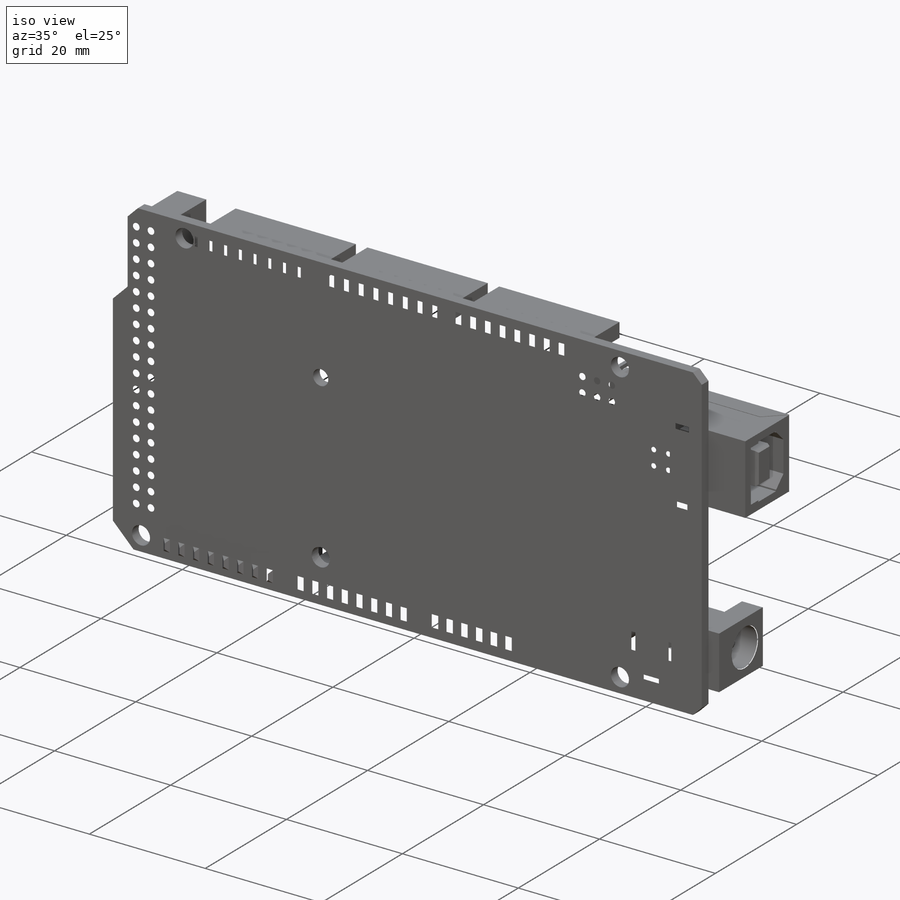
[diagram: iso view]
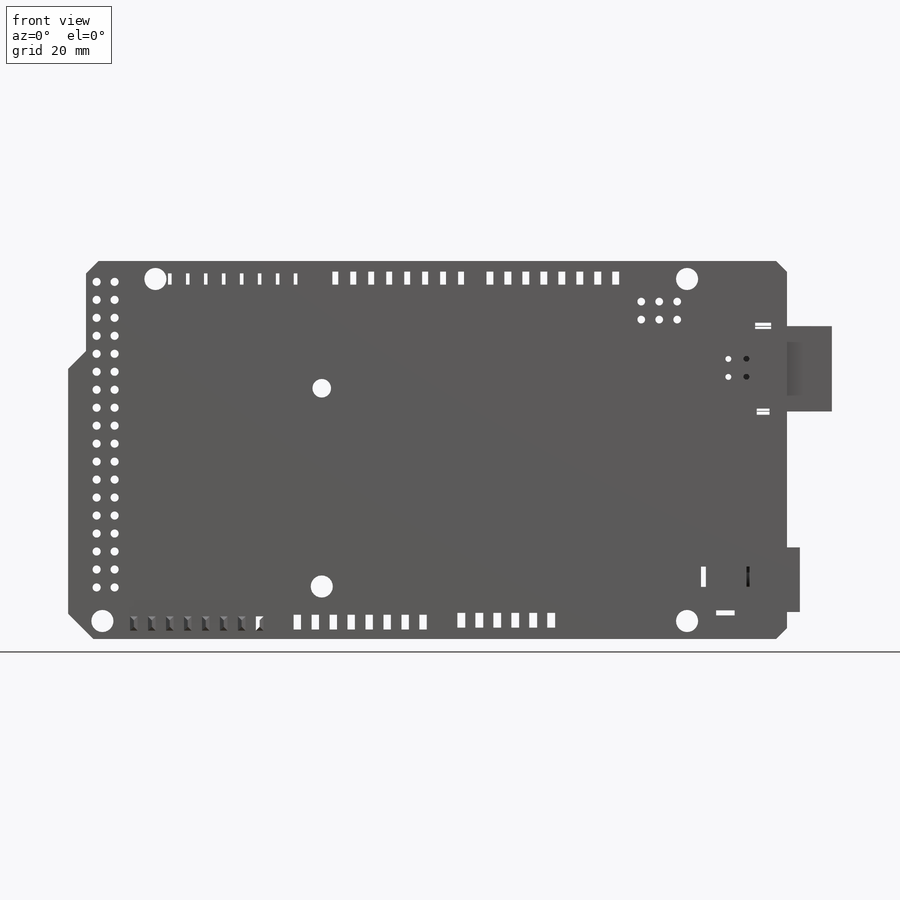
[diagram: front view]
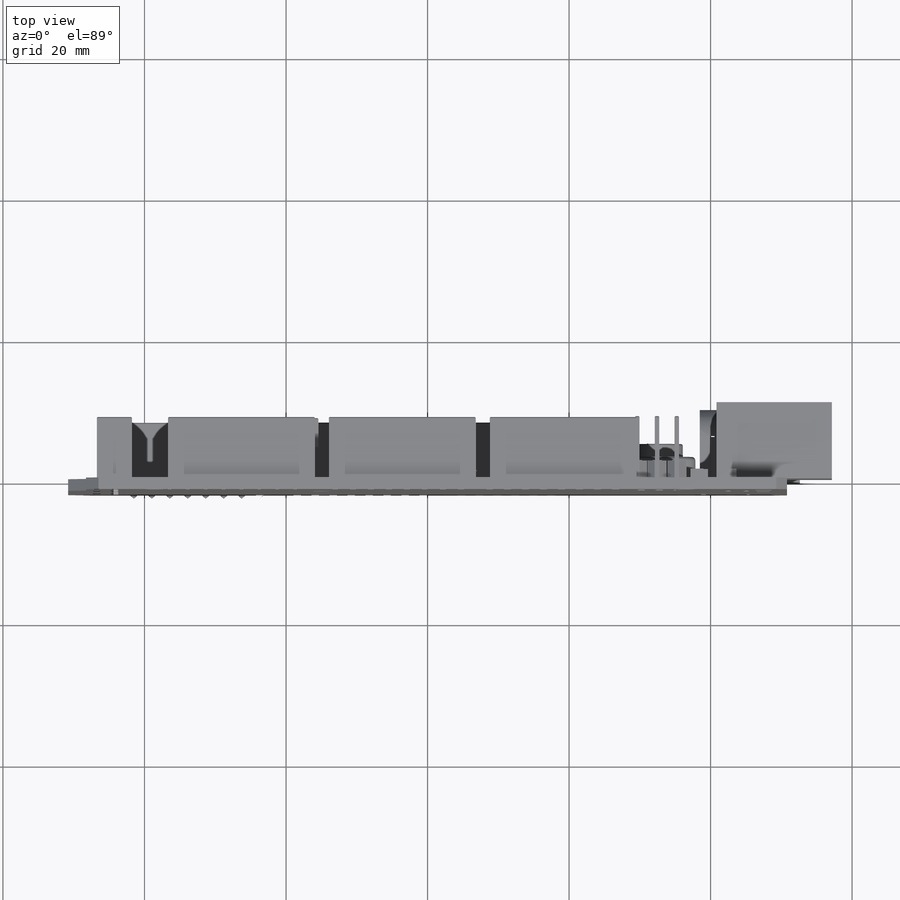
[diagram: top view]
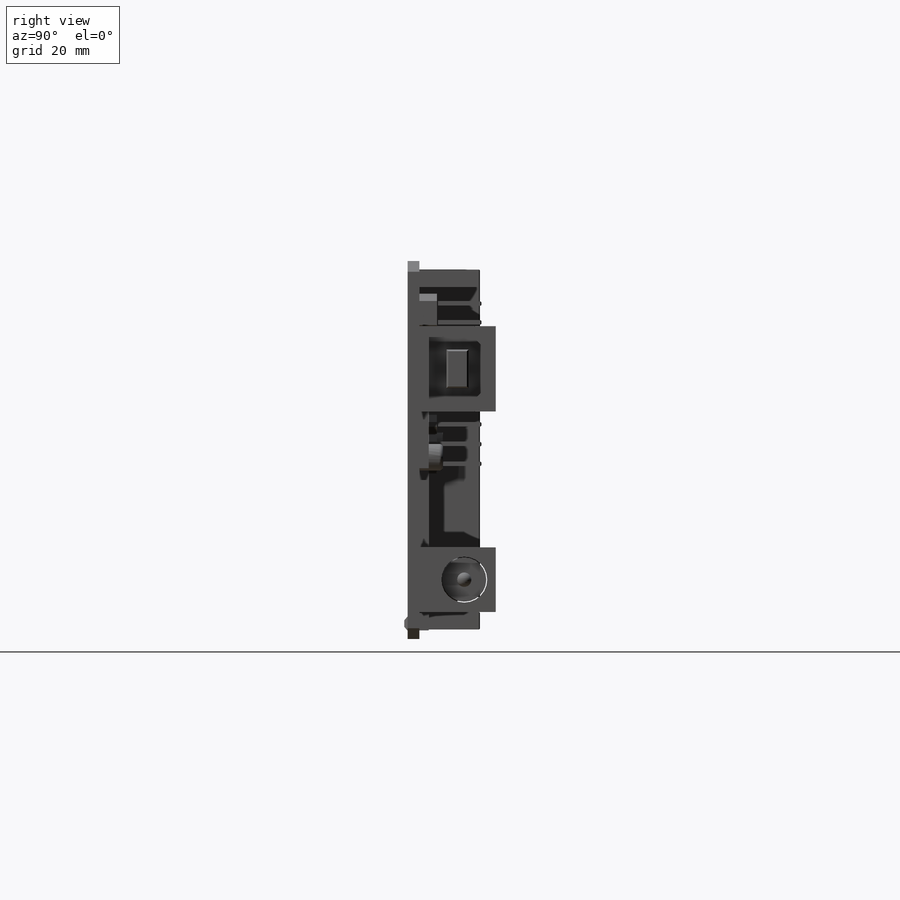
[diagram: right view]
SOLIDWORKS PART (.sldprt)
format: sldprt  version: not decoded by parser v0  size: 3,114,496 bytes
history: native  units: mm
features: sketch x23, extrude x17, cut_extrude x6, fillet x5, chamfer x5, material x1, plane x1, mirror x1 (+12 scaffold rows collapsed)
feature tree (71):
  scaffold x12  (default folders/planes/origin — collapsed)
  material  "Materiale <non specificato>"
  sketch  "Sketch1"  dims[D1=101.6mm D2=53.4162mm]
  extrude  "Boss-Extrude1"  Depth=1.651mm
  sketch  "Sketch2"  dims[c1.D1=4.9784mm c1.D2=46.2788mm c1.D3=5.9182mm c1.D4=4.064mm c1.D5=20.7518mm c1.D6=2.4638mm c1.D7=1.27mm c1.D8=5.08mm c1.D10=22.733mm c1.D11=2.4638mm c1.D12=20.828mm c1.D13=8.255mm c1.D14=1.3462mm c1.D15=15.6972mm c1.D16=~2.449419mm c1.D17=2.159mm c1.D18=13.7922mm c1.D9=3.0 c2.D16=2.0]
  extrude  "Boss-Extrude2"  Depth=8.5598mm
  sketch  "Sketch3"  dims[D1=16.3068mm D2=11.938mm D3=6.35mm D4=9.271mm]
  extrude  "Boss-Extrude3"  Depth=10.795mm
  sketch  "Sketch4"  dims[D1=9.144mm D2=14.224mm D3=1.8288mm D4=3.81mm]
  extrude  "Boss-Extrude4"  Depth=6.477mm
  sketch  "Sketch5"  dims[D1=3.556mm]
  extrude  "Boss-Extrude5"  Depth=4.318mm
  sketch  "Sketch6"  dims[D1=7.62mm]
  extrude  "Boss-Extrude6"  [1 undecoded]
  sketch  "Sketch7"  dims[D1=1.6002mm D2=1.6002mm]
  cut_extrude  "Cut-Extrude1"  [1 undecoded]
  sketch  "Sketch8"  dims[c1.D1=~3.440995mm c1.D2=6.35mm c1.D3=~3.440995mm c2.D1=0.0mm c2.D3=4.445mm]
  cut_extrude  "Cut-Extrude2"  Depth=12.065mm
  sketch  "Sketch9"  dims[D1=2.032mm]
  extrude  "Boss-Extrude7"  Depth=10.16mm
  fillet  "Fillet1"  Radius=1.016mm
  sketch  "Sketch10"  dims[c1.D1=1.524mm c1.D2=0.508mm c1.D3=4.318mm c1.D4=1.778mm c1.D5=1.778mm c1.D6=~2.169254mm c2.D6=45.0deg c2.D7=~2.219182mm c3.D7=45.0deg]
  cut_extrude  "Cut-Extrude3"  Depth=13.97mm
  sketch  "Sketch11"  dims[D1=3.1496mm D2=5.4864mm]
  extrude  "Boss-Extrude8"  Depth=13.462mm
  chamfer  "Chamfer1"  Distance=0.254mm Angle=63deg
  plane  "Plane1"  Offset=5.969mm
  sketch  "Sketch12"  dims[c1.D1=2.9464mm c1.D2=~3.514881mm c2.D2=45.0deg c2.D3=0.0635mm c2.D4=~2.354054mm c3.D4=45.0deg c3.D3=2.9464mm c3.D5=0.0635mm c3.D6=~4.317701mm c4.D6=45.0deg]
  extrude  "Boss-Extrude9"  Depth=0.0635mm
  mirror  "Mirror1"
  chamfer  "Chamfer2"  Distance=1.524mm Angle=45deg
  chamfer  "Chamfer3"  Distance=3.556mm Angle=45deg
  sketch  "Sketch13"  dims[c1.D1=15.24mm c1.D2=2.54mm c1.D3=~3.755687mm c2.D3=45.0deg]
  cut_extrude  "Cut-Extrude4"  [1 undecoded]
  sketch  "Sketch14"
  extrude  "Boss-Extrude10"  Depth=1.397mm
  sketch  "Sketch15"
  extrude  "Boss-Extrude11"  Depth=2.286mm
  sketch  "Sketch16"  dims[D1=3.048mm]
  extrude  "Boss-Extrude12"  Depth=1.016mm
  sketch  "Sketch17"
  extrude  "Boss-Extrude13"  Depth=3.3528mm
  fillet  "Fillet2"  Radius=0.508mm
  sketch  "Sketch19"  dims[D1=6.604mm]
  extrude  "Boss-Extrude14"  Depth=5.461mm
  fillet  "Fillet3"  Radius=0.254mm
  sketch  "Sketch20"  dims[c1.D1=1.016mm c1.D2=0.0mm c1.D3=~1.346799mm c2.D3=~48.971345deg c2.D8=~1.346799mm c3.D8=~41.028655deg c3.D2=2.794mm c3.D3=~2.696529mm c3.D4=5.4102mm c3.D5=2.6924mm c3.D6=~5.410574mm c3.D7=2.794mm c3.D1=3.0]
  extrude  "Boss-Extrude15"  Depth=2.54mm
  sketch  "Sketch21"  dims[D1=0.635mm D2=0.635mm D4=2.794mm D5=1.016mm D6=1.016mm D7=0.635mm D8=0.635mm D9=2.794mm D3=3.0 D10=3.0]
  extrude  "Boss-Extrude16"  Depth=6.223mm
  chamfer  "Chamfer4"  Distance=0.127mm Angle=45deg
  sketch  "Sketch22"  dims[c1.D1=3.1242mm c1.D2=3.1242mm c1.D3=3.1242mm c1.D4=3.1242mm c1.D5=3.1242mm c1.D6=3.1242mm c1.D7=3.1242mm c1.D8=3.1242mm c1.D9=~2.630513mm c2.D2=14.1224mm c2.D3=2.54mm c2.D4=2.54mm c2.D5=82.6262mm c2.D6=2.54mm c2.D7=2.54mm c2.D8=75.1332mm c2.D9=28.0162mm c2.D10=0.0mm c2.D11=0.0mm c2.D12=0.0mm c2.D13=35.8521mm]
  cut_extrude  "Cut-Extrude5"  [1 undecoded]
  sketch  "Sketch24"  dims[D1=0.7239mm D2=0.7239mm D3=1.3208mm D5=0.7239mm D6=0.7239mm D7=1.3208mm D8=0.7239mm D9=0.7239mm D10=1.3208mm D11=0.7239mm D12=1.3208mm D13=0.7239mm D14=0.7239mm D15=1.3208mm D16=0.7239mm D17=1.3208mm D18=0.7239mm D19=0.7239mm D20=1.3208mm D4=18.0]
  cut_extrude  "Cut-Extrude6"  Depth=6.35mm
  chamfer  "Chamfer5"  Distance=0.127mm Angle=45deg
  sketch  "Sketch25"  dims[D1=18.0 D2=2.0 D3=2.0]
  extrude  "Boss-Extrude17"  Depth=0.508mm
  fillet  "Fillet4"  Radius=0.0635mm
  fillet  "Fillet5"  Radius=0.0635mm
decode coverage: 49 of 57 modeling features carry decoded parameters
note: ~ marks probable driven/reference dimensions
note: 4 parameter values undecoded
summary: no parameter record found for 4 features
note: suppression state not decoded; provenance and decode notes live in map.json
